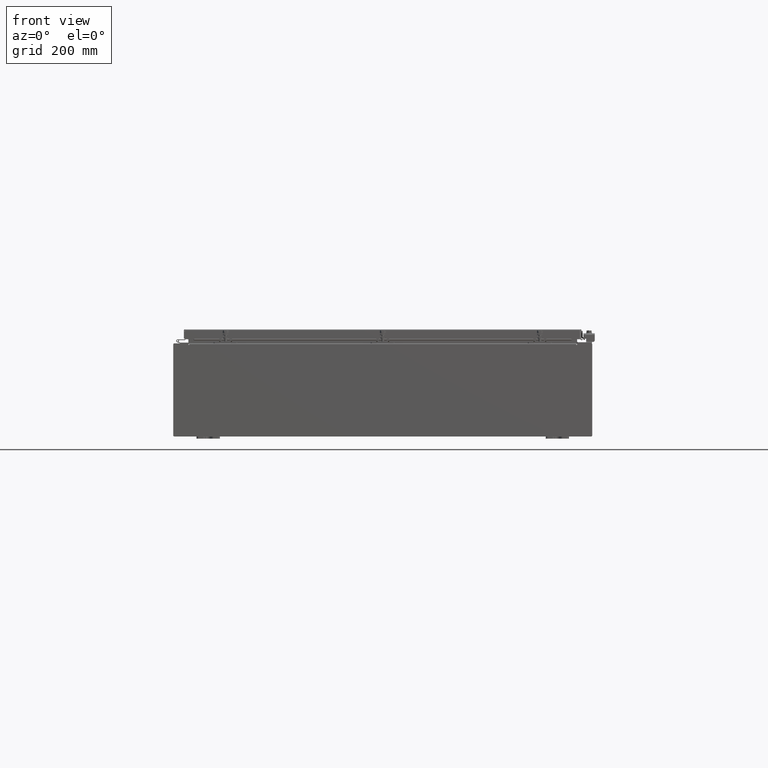
[diagram: clean part render]
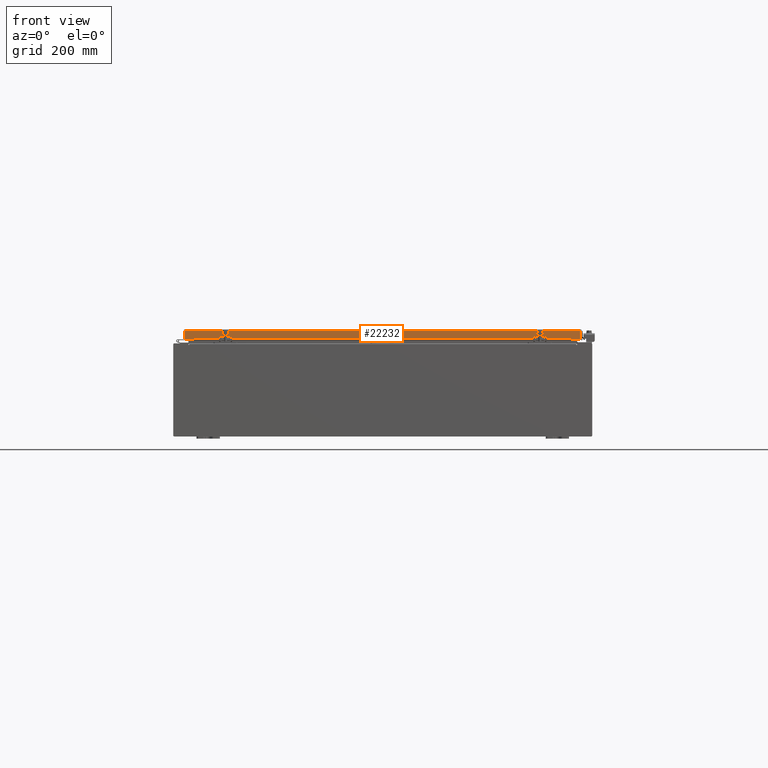
[diagram: same view with one face highlighted and labeled with its STEP entity id]
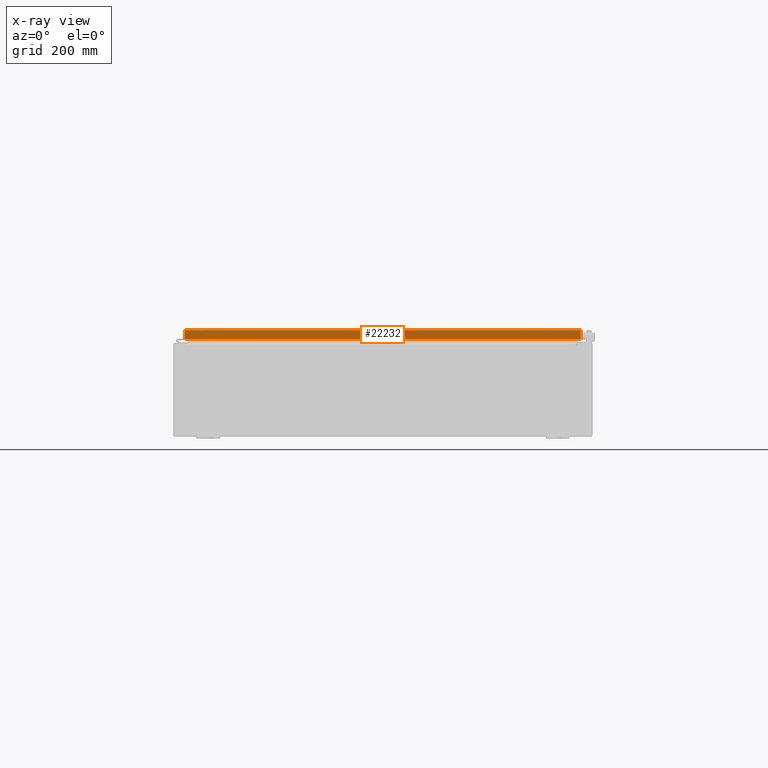
[diagram: x-ray of the same camera — body ghosted, the highlighted face saturated]
A machine part, front view. The second image highlights one B-rep face of the part: STEP entity #22232.
The next image is the same camera in x-ray: the body ghosted, the highlighted face saturated — about 0% of this face is hidden behind the body in this view.
In plain terms, the highlighted planar face has unit normal (-0, 1, -0).
Its self-contained STEP definition (entity closure, byte-faithful):
#726 = VECTOR ( 'NONE', #49702, 39.37007874015748100 ) ;
#974 = AXIS2_PLACEMENT_3D ( 'NONE', #3812, #26307, #30285 ) ;
#2518 = CARTESIAN_POINT ( 'NONE',  ( -16.98915786437627100, -23.09400000000000100, 1.304592866407813600E-013 ) ) ;
#3363 = LINE ( 'NONE', #19091, #726 ) ;
#3812 = CARTESIAN_POINT ( 'NONE',  ( 1.614087649790581200E-029, -23.09400000000000100, 1.304592866407813600E-013 ) ) ;
#5719 = CARTESIAN_POINT ( 'NONE',  ( -16.98915786437626700, -23.09400000000000100, -0.08769999999999547600 ) ) ;
#7425 = EDGE_LOOP ( 'NONE', ( #49801, #31381, #46288, #8697, #23933, #15601 ) ) ;
#7703 = CARTESIAN_POINT ( 'NONE',  ( 16.98915786437626700, -23.09400000000000100, -0.08769999999999549000 ) ) ;
#8697 = ORIENTED_EDGE ( 'NONE', *, *, #52482, .F. ) ;
#8911 = CARTESIAN_POINT ( 'NONE',  ( -16.98915786437626700, -23.09400000000000500, -0.8499999999999954300 ) ) ;
#11392 = VERTEX_POINT ( 'NONE', #5719 ) ;
#13464 = VERTEX_POINT ( 'NONE', #29324 ) ;
#13502 = VECTOR ( 'NONE', #36156, 39.37007874015748100 ) ;
#14604 = VECTOR ( 'NONE', #45633, 39.37007874015748100 ) ;
#14747 = EDGE_CURVE ( 'NONE', #11392, #33154, #46477, .T. ) ;
#14965 = PLANE ( 'NONE',  #974 ) ;
#15192 = EDGE_CURVE ( 'NONE', #40126, #46462, #3363, .T. ) ;
#15601 = ORIENTED_EDGE ( 'NONE', *, *, #40497, .F. ) ;
#15650 = VERTEX_POINT ( 'NONE', #7703 ) ;
#18080 = EDGE_CURVE ( 'NONE', #13464, #33154, #45957, .T. ) ;
#19091 = CARTESIAN_POINT ( 'NONE',  ( 17.07799999999999900, -23.09400000000000500, -0.8499999999999996400 ) ) ;
#22232 = ADVANCED_FACE ( 'NONE', ( #24119 ), #14965, .F. ) ;
#22820 = DIRECTION ( 'NONE',  ( -1.000000000000000000, -8.758115402030108600E-047, 1.239713195391617400E-016 ) ) ;
#23734 = CARTESIAN_POINT ( 'NONE',  ( 16.23915786437626700, -23.09400000000000500, -0.8500000000000048600 ) ) ;
#23933 = ORIENTED_EDGE ( 'NONE', *, *, #15192, .F. ) ;
#24061 = EDGE_CURVE ( 'NONE', #11392, #15650, #28101, .T. ) ;
#24119 = FACE_OUTER_BOUND ( 'NONE', #7425, .T. ) ;
#24965 = CARTESIAN_POINT ( 'NONE',  ( 16.98915786437626700, -23.09400000000000500, -0.8499999999999996400 ) ) ;
#26307 = DIRECTION ( 'NONE',  ( -6.989207801985715000E-031, 1.000000000000000000, -5.637761885544720300E-015 ) ) ;
#28101 = LINE ( 'NONE', #51088, #39513 ) ;
#28164 = CARTESIAN_POINT ( 'NONE',  ( 16.23915786437626400, -23.09400000000000500, -0.8500000000000048600 ) ) ;
#29324 = CARTESIAN_POINT ( 'NONE',  ( -16.23915786437626700, -23.09400000000000500, -0.8500000000000048600 ) ) ;
#30285 = DIRECTION ( 'NONE',  ( 0.0000000000000000000, 5.637761885544720300E-015, 1.000000000000000000 ) ) ;
#30620 = VECTOR ( 'NONE', #53436, 39.37007874015748100 ) ;
#31381 = ORIENTED_EDGE ( 'NONE', *, *, #14747, .T. ) ;
#31933 = LINE ( 'NONE', #23734, #30620 ) ;
#33154 = VERTEX_POINT ( 'NONE', #8911 ) ;
#36156 = DIRECTION ( 'NONE',  ( 0.0000000000000000000, -5.637761885544720300E-015, -1.000000000000000000 ) ) ;
#39513 = VECTOR ( 'NONE', #42014, 39.37007874015748100 ) ;
#40126 = VERTEX_POINT ( 'NONE', #24965 ) ;
#40497 = EDGE_CURVE ( 'NONE', #15650, #40126, #51563, .T. ) ;
#41402 = CARTESIAN_POINT ( 'NONE',  ( 16.98915786437626700, -23.09400000000000100, -0.07469999999999958600 ) ) ;
#42014 = DIRECTION ( 'NONE',  ( 1.000000000000000000, 6.989207801985715800E-031, -3.922586267643549700E-045 ) ) ;
#42618 = CARTESIAN_POINT ( 'NONE',  ( 17.07799999999999900, -23.09400000000000500, -0.8499999999999996400 ) ) ;
#45633 = DIRECTION ( 'NONE',  ( -0.0000000000000000000, -5.637761885544720300E-015, -1.000000000000000000 ) ) ;
#45957 = LINE ( 'NONE', #42618, #54431 ) ;
#46288 = ORIENTED_EDGE ( 'NONE', *, *, #18080, .F. ) ;
#46462 = VERTEX_POINT ( 'NONE', #28164 ) ;
#46477 = LINE ( 'NONE', #2518, #13502 ) ;
#49702 = DIRECTION ( 'NONE',  ( -1.000000000000000000, -8.758115402030108600E-047, 1.239713195391617400E-016 ) ) ;
#49801 = ORIENTED_EDGE ( 'NONE', *, *, #24061, .F. ) ;
#51088 = CARTESIAN_POINT ( 'NONE',  ( 17.07799999999999900, -23.09400000000000100, -0.08769999999999547600 ) ) ;
#51563 = LINE ( 'NONE', #41402, #14604 ) ;
#52482 = EDGE_CURVE ( 'NONE', #46462, #13464, #31933, .T. ) ;
#53436 = DIRECTION ( 'NONE',  ( -1.000000000000000000, 0.0000000000000000000, 0.0000000000000000000 ) ) ;
#54431 = VECTOR ( 'NONE', #22820, 39.37007874015748100 ) ;